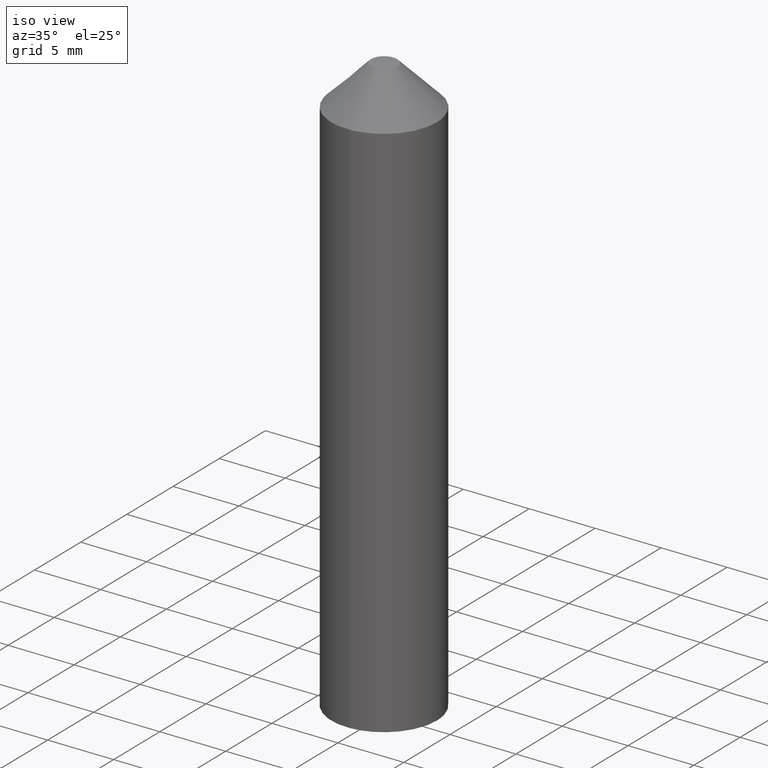
[diagram: clean part render]
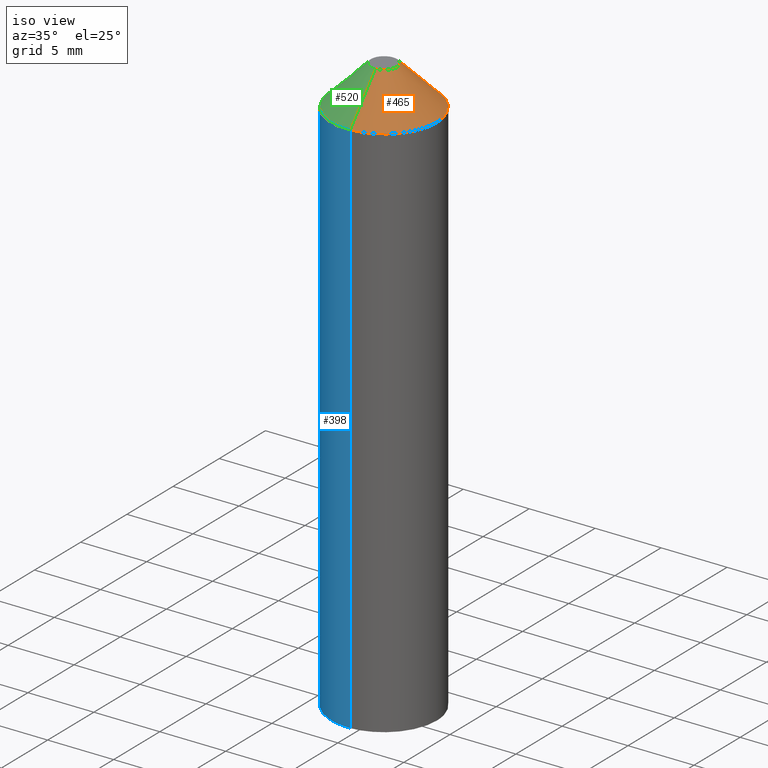
[diagram: same view with three faces highlighted in distinct colors, each labeled with its STEP entity id]
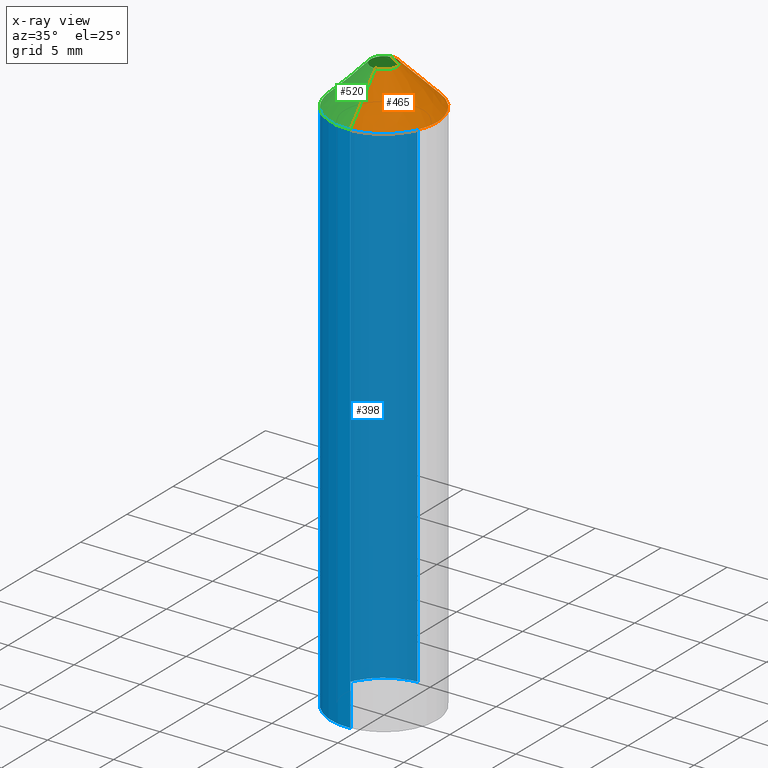
[diagram: x-ray of the same camera — body ghosted, the three highlighted faces saturated]
A machine part, iso view with three faces highlighted in distinct colors.
The next image is the same camera in x-ray (body ghosted, the three faces saturated) — at least one of them is partly hidden behind the body in this view.
Their STEP definitions:

[orange] entity #465 — the highlighted face is a freeform B-spline surface patch.
#295=CARTESIAN_POINT('',(-0.244194158174903,3.992539193689956,40.999999999990713));
#296=VERTEX_POINT('',#295);
#302=CARTESIAN_POINT('',(4.0,0.0,41.0));
#303=VERTEX_POINT('',#302);
#304=CARTESIAN_POINT('',(-0.244194158174903,3.992539193689956,40.999999999990706));
#305=CARTESIAN_POINT('',(-0.122211053195240,4.000000000006696,40.999999999990834));
#306=CARTESIAN_POINT('',(3.387205E-011,4.000000000006592,40.999999999990983));
#307=CARTESIAN_POINT('',(4.000000000016419,4.000000000003194,40.999999999995630));
#308=CARTESIAN_POINT('',(4.0,0.0,41.0));
#316=(BOUNDED_CURVE()B_SPLINE_CURVE(2,(#304,#305,#306,#307,#308),.UNSPECIFIED.,.F.,.U.)B_SPLINE_CURVE_WITH_KNOTS((3,2,3),(0.239332962238927,0.250000000000000,0.500000000000000),.UNSPECIFIED.)CURVE()GEOMETRIC_REPRESENTATION_ITEM()RATIONAL_B_SPLINE_CURVE((0.976072041666683,0.987502787899818,1.0,0.707106781186548,1.0))REPRESENTATION_ITEM(''));
#317=EDGE_CURVE('',#296,#303,#316,.T.);
#319=CARTESIAN_POINT('',(0.244194158174903,-3.992539193689955,40.999999999990713));
#320=VERTEX_POINT('',#319);
#321=CARTESIAN_POINT('',(4.0,0.0,41.0));
#322=CARTESIAN_POINT('',(3.999999999982546,-3.762824267559718,40.999999999995346));
#323=CARTESIAN_POINT('',(0.244194158174903,-3.992539193689955,40.999999999990713));
#331=(BOUNDED_CURVE()B_SPLINE_CURVE(2,(#321,#322,#323),.UNSPECIFIED.,.F.,.U.)B_SPLINE_CURVE_WITH_KNOTS((3,3),(0.500000000000000,0.739332962238927),.UNSPECIFIED.)CURVE()GEOMETRIC_REPRESENTATION_ITEM()RATIONAL_B_SPLINE_CURVE((1.0,0.719603993286729,0.976072041666683))REPRESENTATION_ITEM(''));
#332=EDGE_CURVE('',#303,#320,#331,.T.);
#399=CARTESIAN_POINT('',(-0.056469899069552,0.923274688537112,44.075000000000010));
#400=CARTESIAN_POINT('',(0.866804789467560,0.979744587606664,44.075000000000010));
#401=CARTESIAN_POINT('',(0.923274688537112,0.056469899069552,44.075000000000010));
#402=CARTESIAN_POINT('',(0.979744587606664,-0.866804789467560,44.075000000000010));
#403=CARTESIAN_POINT('',(0.056469899069552,-0.923274688537112,44.075000000000010));
#404=CARTESIAN_POINT('',(-0.248887264616175,4.069270806316234,40.923124999999992));
#405=CARTESIAN_POINT('',(3.820383541700059,4.318158070932409,40.923124999999992));
#406=CARTESIAN_POINT('',(4.069270806316234,0.248887264616175,40.923124999999992));
#407=CARTESIAN_POINT('',(4.318158070932409,-3.820383541700059,40.923124999999992));
#408=CARTESIAN_POINT('',(0.248887264616175,-4.069270806316234,40.923124999999992));
#416=(BOUNDED_SURFACE()B_SPLINE_SURFACE(2,1,((#399,#404),(#400,#405),(#401,#406),(#402,#407),(#403,#408)),.UNSPECIFIED.,.F.,.F.,.U.)B_SPLINE_SURFACE_WITH_KNOTS((3,2,3),(2,2),(0.0,6.754787668399389,13.509575336798781),(0.0,4.457424371906979),.UNSPECIFIED.)GEOMETRIC_REPRESENTATION_ITEM()RATIONAL_B_SPLINE_SURFACE(((1.0,1.0),(0.707106781186548,0.707106781186548),(1.0,1.0),(0.707106781186548,0.707106781186548),(1.0,1.0)))REPRESENTATION_ITEM('')SURFACE());
#417=CARTESIAN_POINT('',(-0.061048540107989,0.998134798459561,43.999999999924313));
#418=VERTEX_POINT('',#417);
#419=CARTESIAN_POINT('',(0.999999999996874,0.0,44.0));
#420=VERTEX_POINT('',#419);
#421=CARTESIAN_POINT('',(-0.061048540107989,0.998134798459561,43.999999999924306));
#422=CARTESIAN_POINT('',(-0.030552763588197,1.000000000071385,43.999999999925386));
#423=CARTESIAN_POINT('',(-4.486652E-012,1.000000000070230,43.999999999926551));
#424=CARTESIAN_POINT('',(0.999999999994699,1.000000000032431,43.999999999964402));
#425=CARTESIAN_POINT('',(0.999999999996874,0.0,44.0));
#433=(BOUNDED_CURVE()B_SPLINE_CURVE(2,(#421,#422,#423,#424,#425),.UNSPECIFIED.,.F.,.U.)B_SPLINE_CURVE_WITH_KNOTS((3,2,3),(0.239332962143658,0.250000000000000,0.500000000000000),.UNSPECIFIED.)CURVE()GEOMETRIC_REPRESENTATION_ITEM()RATIONAL_B_SPLINE_CURVE((0.976072041462504,0.987502787788204,1.0,0.707106781186548,1.0))REPRESENTATION_ITEM(''));
#434=EDGE_CURVE('',#418,#420,#433,.T.);
#435=ORIENTED_EDGE('',*,*,#434,.T.);
#436=CARTESIAN_POINT('',(0.061048540107988,-0.998134798459558,43.999999999924313));
#437=VERTEX_POINT('',#436);
#438=CARTESIAN_POINT('',(0.999999999996874,0.0,44.0));
#439=CARTESIAN_POINT('',(0.999999999999186,-0.940706066403572,43.999999999962156));
#440=CARTESIAN_POINT('',(0.061048540107988,-0.998134798459558,43.999999999924313));
#448=(BOUNDED_CURVE()B_SPLINE_CURVE(2,(#438,#439,#440),.UNSPECIFIED.,.F.,.U.)B_SPLINE_CURVE_WITH_KNOTS((3,3),(0.500000000000000,0.739332962143658),.UNSPECIFIED.)CURVE()GEOMETRIC_REPRESENTATION_ITEM()RATIONAL_B_SPLINE_CURVE((1.0,0.719603993398344,0.976072041462503))REPRESENTATION_ITEM(''));
#449=EDGE_CURVE('',#420,#437,#448,.T.);
#450=ORIENTED_EDGE('',*,*,#449,.T.);
#451=CARTESIAN_POINT('',(0.061048540107988,-0.998134798459558,43.999999999924313));
#452=CARTESIAN_POINT('',(0.244194158210377,-3.992539193692443,40.999999999990713));
#453=QUASI_UNIFORM_CURVE('',1,(#451,#452),.UNSPECIFIED.,.F.,.U.);
#454=EDGE_CURVE('',#437,#320,#453,.T.);
#455=ORIENTED_EDGE('',*,*,#454,.T.);
#456=ORIENTED_EDGE('',*,*,#332,.F.);
#457=ORIENTED_EDGE('',*,*,#317,.F.);
#458=CARTESIAN_POINT('',(-0.061048540107989,0.998134798459561,43.999999999924313));
#459=CARTESIAN_POINT('',(-0.244194158210377,3.992539193692445,40.999999999990713));
#460=QUASI_UNIFORM_CURVE('',1,(#458,#459),.UNSPECIFIED.,.F.,.U.);
#461=EDGE_CURVE('',#418,#296,#460,.T.);
#462=ORIENTED_EDGE('',*,*,#461,.F.);
#463=EDGE_LOOP('',(#435,#450,#455,#456,#457,#462));
#464=FACE_OUTER_BOUND('',#463,.T.);
#465=ADVANCED_FACE('',(#464),#416,.T.);

[blue] entity #398 — the highlighted face is a freeform B-spline surface patch.
#204=CARTESIAN_POINT('',(-4.0,0.0,0.0));
#205=VERTEX_POINT('',#204);
#206=CARTESIAN_POINT('',(-0.244194158160723,3.992539193686165,1.110223E-015));
#207=VERTEX_POINT('',#206);
#208=CARTESIAN_POINT('',(-4.0,0.0,0.0));
#209=CARTESIAN_POINT('',(-4.0,3.762824267602673,0.0));
#210=CARTESIAN_POINT('',(-0.244194158160722,3.992539193686166,0.0));
#218=(BOUNDED_CURVE()B_SPLINE_CURVE(2,(#208,#209,#210),.UNSPECIFIED.,.F.,.U.)B_SPLINE_CURVE_WITH_KNOTS((3,3),(0.0,0.239332962241048),.UNSPECIFIED.)CURVE()GEOMETRIC_REPRESENTATION_ITEM()RATIONAL_B_SPLINE_CURVE((1.0,0.719603993284244,0.976072041671229))REPRESENTATION_ITEM(''));
#219=EDGE_CURVE('',#205,#207,#218,.T.);
#238=CARTESIAN_POINT('',(0.244194158160722,-3.992539193686165,1.110223E-015));
#239=VERTEX_POINT('',#238);
#253=CARTESIAN_POINT('',(0.244194158160721,-3.992539193686166,0.0));
#254=CARTESIAN_POINT('',(0.122211053205032,-4.0,0.0));
#255=CARTESIAN_POINT('',(0.0,-4.0,0.0));
#256=CARTESIAN_POINT('',(-4.000000000000000,-4.000000000000000,0.0));
#257=CARTESIAN_POINT('',(-4.0,0.0,0.0));
#265=(BOUNDED_CURVE()B_SPLINE_CURVE(2,(#253,#254,#255,#256,#257),.UNSPECIFIED.,.F.,.U.)B_SPLINE_CURVE_WITH_KNOTS((3,2,3),(0.739332962241048,0.750000000000000,1.0),.UNSPECIFIED.)CURVE()GEOMETRIC_REPRESENTATION_ITEM()RATIONAL_B_SPLINE_CURVE((0.976072041671229,0.987502787902304,1.0,0.707106781186548,1.0))REPRESENTATION_ITEM(''));
#266=EDGE_CURVE('',#239,#205,#265,.T.);
#295=CARTESIAN_POINT('',(-0.244194158174903,3.992539193689956,40.999999999990713));
#296=VERTEX_POINT('',#295);
#297=CARTESIAN_POINT('',(-0.244194158174903,3.992539193689956,40.999999999990713));
#298=CARTESIAN_POINT('',(-0.244194158160723,3.992539193686165,1.110223E-015));
#299=QUASI_UNIFORM_CURVE('',1,(#297,#298),.UNSPECIFIED.,.F.,.U.);
#300=EDGE_CURVE('',#296,#207,#299,.T.);
#319=CARTESIAN_POINT('',(0.244194158174903,-3.992539193689955,40.999999999990713));
#320=VERTEX_POINT('',#319);
#334=CARTESIAN_POINT('',(0.244194158174903,-3.992539193689955,40.999999999990713));
#335=CARTESIAN_POINT('',(0.244194158160722,-3.992539193686165,1.110223E-015));
#336=QUASI_UNIFORM_CURVE('',1,(#334,#335),.UNSPECIFIED.,.F.,.U.);
#337=EDGE_CURVE('',#320,#239,#336,.T.);
#344=CARTESIAN_POINT('',(0.244194158139428,-3.992539193687467,42.025000000000013));
#345=CARTESIAN_POINT('',(-3.748345035548039,-4.236733351826894,42.025000000000013));
#346=CARTESIAN_POINT('',(-3.992539193687467,-0.244194158139428,42.025000000000013));
#347=CARTESIAN_POINT('',(-4.236733351826894,3.748345035548039,42.025000000000013));
#348=CARTESIAN_POINT('',(-0.244194158139428,3.992539193687467,42.025000000000013));
#349=CARTESIAN_POINT('',(0.244194158139428,-3.992539193687467,-1.050625000000004));
#350=CARTESIAN_POINT('',(-3.748345035548039,-4.236733351826894,-1.050625000000004));
#351=CARTESIAN_POINT('',(-3.992539193687467,-0.244194158139428,-1.050625000000004));
#352=CARTESIAN_POINT('',(-4.236733351826894,3.748345035548039,-1.050625000000004));
#353=CARTESIAN_POINT('',(-0.244194158139428,3.992539193687467,-1.050625000000004));
#361=(BOUNDED_SURFACE()B_SPLINE_SURFACE(2,1,((#344,#349),(#345,#350),(#346,#351),(#347,#352),(#348,#353)),.UNSPECIFIED.,.F.,.F.,.U.)B_SPLINE_SURFACE_WITH_KNOTS((3,2,3),(2,2),(0.0,6.627416997969518,13.254833995939039),(0.0,43.075625000000009),.UNSPECIFIED.)GEOMETRIC_REPRESENTATION_ITEM()RATIONAL_B_SPLINE_SURFACE(((1.0,1.0),(0.707106781186548,0.707106781186548),(1.0,1.0),(0.707106781186548,0.707106781186548),(1.0,1.0)))REPRESENTATION_ITEM('')SURFACE());
#362=ORIENTED_EDGE('',*,*,#300,.T.);
#363=ORIENTED_EDGE('',*,*,#219,.F.);
#364=ORIENTED_EDGE('',*,*,#266,.F.);
#365=ORIENTED_EDGE('',*,*,#337,.F.);
#366=CARTESIAN_POINT('',(-4.0,0.0,41.0));
#367=VERTEX_POINT('',#366);
#368=CARTESIAN_POINT('',(0.244194158174903,-3.992539193689955,40.999999999990713));
#369=CARTESIAN_POINT('',(0.122211053195239,-4.000000000006694,40.999999999990841));
#370=CARTESIAN_POINT('',(-3.387327E-011,-4.000000000006591,40.999999999990983));
#371=CARTESIAN_POINT('',(-4.000000000016420,-4.000000000003194,40.999999999995630));
#372=CARTESIAN_POINT('',(-4.0,0.0,41.0));
#380=(BOUNDED_CURVE()B_SPLINE_CURVE(2,(#368,#369,#370,#371,#372),.UNSPECIFIED.,.F.,.U.)B_SPLINE_CURVE_WITH_KNOTS((3,2,3),(0.739332962238927,0.750000000000000,1.0),.UNSPECIFIED.)CURVE()GEOMETRIC_REPRESENTATION_ITEM()RATIONAL_B_SPLINE_CURVE((0.976072041666683,0.987502787899818,1.0,0.707106781186548,1.0))REPRESENTATION_ITEM(''));
#381=EDGE_CURVE('',#320,#367,#380,.T.);
#382=ORIENTED_EDGE('',*,*,#381,.T.);
#383=CARTESIAN_POINT('',(-4.0,0.0,41.0));
#384=CARTESIAN_POINT('',(-3.999999999982547,3.762824267559719,40.999999999995353));
#385=CARTESIAN_POINT('',(-0.244194158174903,3.992539193689956,40.999999999990706));
#393=(BOUNDED_CURVE()B_SPLINE_CURVE(2,(#383,#384,#385),.UNSPECIFIED.,.F.,.U.)B_SPLINE_CURVE_WITH_KNOTS((3,3),(0.0,0.239332962238927),.UNSPECIFIED.)CURVE()GEOMETRIC_REPRESENTATION_ITEM()RATIONAL_B_SPLINE_CURVE((1.0,0.719603993286729,0.976072041666683))REPRESENTATION_ITEM(''));
#394=EDGE_CURVE('',#367,#296,#393,.T.);
#395=ORIENTED_EDGE('',*,*,#394,.T.);
#396=EDGE_LOOP('',(#362,#363,#364,#365,#382,#395));
#397=FACE_OUTER_BOUND('',#396,.T.);
#398=ADVANCED_FACE('',(#397),#361,.T.);

[green] entity #520 — the highlighted face is a freeform B-spline surface patch.
#295=CARTESIAN_POINT('',(-0.244194158174903,3.992539193689956,40.999999999990713));
#296=VERTEX_POINT('',#295);
#319=CARTESIAN_POINT('',(0.244194158174903,-3.992539193689955,40.999999999990713));
#320=VERTEX_POINT('',#319);
#366=CARTESIAN_POINT('',(-4.0,0.0,41.0));
#367=VERTEX_POINT('',#366);
#368=CARTESIAN_POINT('',(0.244194158174903,-3.992539193689955,40.999999999990713));
#369=CARTESIAN_POINT('',(0.122211053195239,-4.000000000006694,40.999999999990841));
#370=CARTESIAN_POINT('',(-3.387327E-011,-4.000000000006591,40.999999999990983));
#371=CARTESIAN_POINT('',(-4.000000000016420,-4.000000000003194,40.999999999995630));
#372=CARTESIAN_POINT('',(-4.0,0.0,41.0));
#380=(BOUNDED_CURVE()B_SPLINE_CURVE(2,(#368,#369,#370,#371,#372),.UNSPECIFIED.,.F.,.U.)B_SPLINE_CURVE_WITH_KNOTS((3,2,3),(0.739332962238927,0.750000000000000,1.0),.UNSPECIFIED.)CURVE()GEOMETRIC_REPRESENTATION_ITEM()RATIONAL_B_SPLINE_CURVE((0.976072041666683,0.987502787899818,1.0,0.707106781186548,1.0))REPRESENTATION_ITEM(''));
#381=EDGE_CURVE('',#320,#367,#380,.T.);
#383=CARTESIAN_POINT('',(-4.0,0.0,41.0));
#384=CARTESIAN_POINT('',(-3.999999999982547,3.762824267559719,40.999999999995353));
#385=CARTESIAN_POINT('',(-0.244194158174903,3.992539193689956,40.999999999990706));
#393=(BOUNDED_CURVE()B_SPLINE_CURVE(2,(#383,#384,#385),.UNSPECIFIED.,.F.,.U.)B_SPLINE_CURVE_WITH_KNOTS((3,3),(0.0,0.239332962238927),.UNSPECIFIED.)CURVE()GEOMETRIC_REPRESENTATION_ITEM()RATIONAL_B_SPLINE_CURVE((1.0,0.719603993286729,0.976072041666683))REPRESENTATION_ITEM(''));
#394=EDGE_CURVE('',#367,#296,#393,.T.);
#417=CARTESIAN_POINT('',(-0.061048540107989,0.998134798459561,43.999999999924313));
#418=VERTEX_POINT('',#417);
#436=CARTESIAN_POINT('',(0.061048540107988,-0.998134798459558,43.999999999924313));
#437=VERTEX_POINT('',#436);
#451=CARTESIAN_POINT('',(0.061048540107988,-0.998134798459558,43.999999999924313));
#452=CARTESIAN_POINT('',(0.244194158210377,-3.992539193692443,40.999999999990713));
#453=QUASI_UNIFORM_CURVE('',1,(#451,#452),.UNSPECIFIED.,.F.,.U.);
#454=EDGE_CURVE('',#437,#320,#453,.T.);
#458=CARTESIAN_POINT('',(-0.061048540107989,0.998134798459561,43.999999999924313));
#459=CARTESIAN_POINT('',(-0.244194158210377,3.992539193692445,40.999999999990713));
#460=QUASI_UNIFORM_CURVE('',1,(#458,#459),.UNSPECIFIED.,.F.,.U.);
#461=EDGE_CURVE('',#418,#296,#460,.T.);
#466=CARTESIAN_POINT('',(0.056469899069552,-0.923274688537112,44.075000000000010));
#467=CARTESIAN_POINT('',(-0.866804789467560,-0.979744587606664,44.075000000000010));
#468=CARTESIAN_POINT('',(-0.923274688537112,-0.056469899069552,44.075000000000010));
#469=CARTESIAN_POINT('',(-0.979744587606664,0.866804789467560,44.075000000000010));
#470=CARTESIAN_POINT('',(-0.056469899069552,0.923274688537112,44.075000000000010));
#471=CARTESIAN_POINT('',(0.248887264616175,-4.069270806316234,40.923124999999992));
#472=CARTESIAN_POINT('',(-3.820383541700059,-4.318158070932409,40.923124999999992));
#473=CARTESIAN_POINT('',(-4.069270806316234,-0.248887264616175,40.923124999999992));
#474=CARTESIAN_POINT('',(-4.318158070932409,3.820383541700059,40.923124999999992));
#475=CARTESIAN_POINT('',(-0.248887264616175,4.069270806316234,40.923124999999992));
#483=(BOUNDED_SURFACE()B_SPLINE_SURFACE(2,1,((#466,#471),(#467,#472),(#468,#473),(#469,#474),(#470,#475)),.UNSPECIFIED.,.F.,.F.,.U.)B_SPLINE_SURFACE_WITH_KNOTS((3,2,3),(2,2),(0.0,6.754787668399389,13.509575336798781),(0.0,4.457424371906979),.UNSPECIFIED.)GEOMETRIC_REPRESENTATION_ITEM()RATIONAL_B_SPLINE_SURFACE(((1.0,1.0),(0.707106781186548,0.707106781186548),(1.0,1.0),(0.707106781186548,0.707106781186548),(1.0,1.0)))REPRESENTATION_ITEM('')SURFACE());
#484=CARTESIAN_POINT('',(-0.999999999996874,0.0,44.0));
#485=VERTEX_POINT('',#484);
#486=CARTESIAN_POINT('',(-0.999999999996874,0.0,44.0));
#487=CARTESIAN_POINT('',(-0.999999999999186,0.940706066403573,43.999999999962142));
#488=CARTESIAN_POINT('',(-0.061048540107989,0.998134798459561,43.999999999924306));
#496=(BOUNDED_CURVE()B_SPLINE_CURVE(2,(#486,#487,#488),.UNSPECIFIED.,.F.,.U.)B_SPLINE_CURVE_WITH_KNOTS((3,3),(0.0,0.239332962143658),.UNSPECIFIED.)CURVE()GEOMETRIC_REPRESENTATION_ITEM()RATIONAL_B_SPLINE_CURVE((1.0,0.719603993398344,0.976072041462504))REPRESENTATION_ITEM(''));
#497=EDGE_CURVE('',#485,#418,#496,.T.);
#498=ORIENTED_EDGE('',*,*,#497,.T.);
#499=ORIENTED_EDGE('',*,*,#461,.T.);
#500=ORIENTED_EDGE('',*,*,#394,.F.);
#501=ORIENTED_EDGE('',*,*,#381,.F.);
#502=ORIENTED_EDGE('',*,*,#454,.F.);
#503=CARTESIAN_POINT('',(0.061048540107988,-0.998134798459558,43.999999999924313));
#504=CARTESIAN_POINT('',(0.030552763588197,-1.000000000071382,43.999999999925393));
#505=CARTESIAN_POINT('',(4.486269E-012,-1.000000000070227,43.999999999926558));
#506=CARTESIAN_POINT('',(-0.999999999994700,-1.000000000032430,43.999999999964402));
#507=CARTESIAN_POINT('',(-0.999999999996874,0.0,44.0));
#515=(BOUNDED_CURVE()B_SPLINE_CURVE(2,(#503,#504,#505,#506,#507),.UNSPECIFIED.,.F.,.U.)B_SPLINE_CURVE_WITH_KNOTS((3,2,3),(0.739332962143658,0.750000000000000,1.0),.UNSPECIFIED.)CURVE()GEOMETRIC_REPRESENTATION_ITEM()RATIONAL_B_SPLINE_CURVE((0.976072041462503,0.987502787788204,1.0,0.707106781186548,1.0))REPRESENTATION_ITEM(''));
#516=EDGE_CURVE('',#437,#485,#515,.T.);
#517=ORIENTED_EDGE('',*,*,#516,.T.);
#518=EDGE_LOOP('',(#498,#499,#500,#501,#502,#517));
#519=FACE_OUTER_BOUND('',#518,.T.);
#520=ADVANCED_FACE('',(#519),#483,.T.);